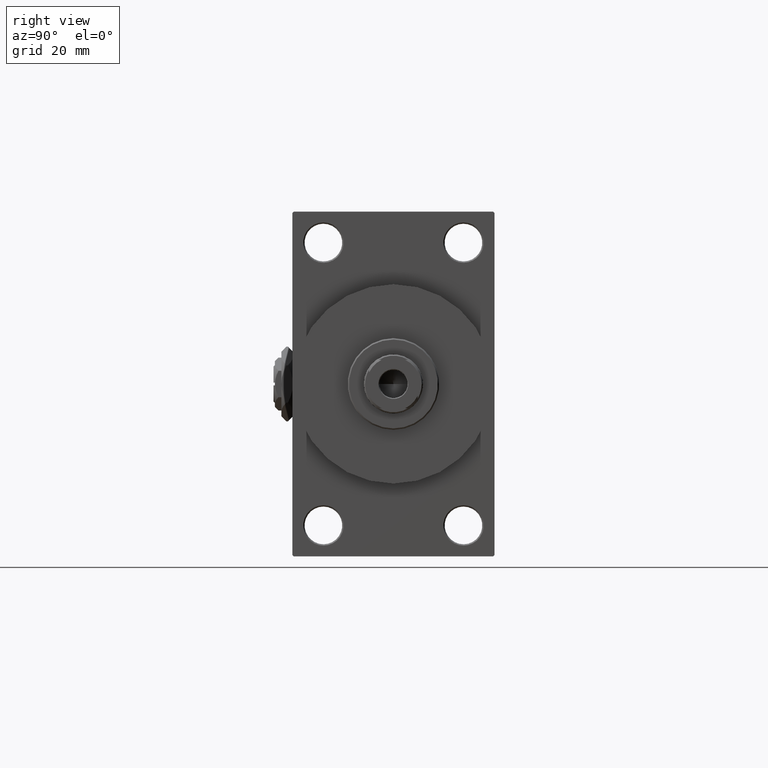
[diagram: clean part render]
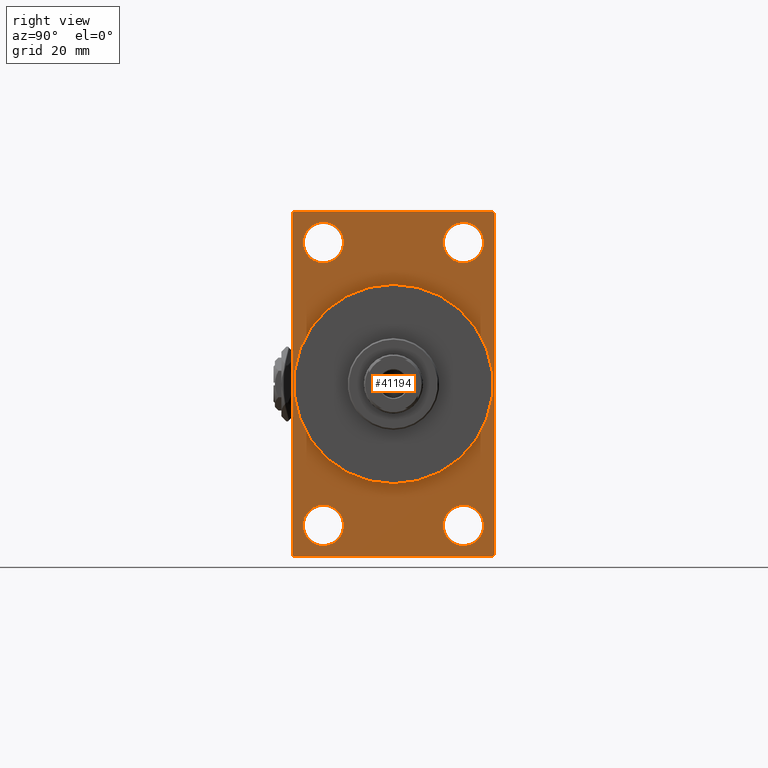
[diagram: same view with one face highlighted and labeled with its STEP entity id]
A machine part, right view. The second image highlights one B-rep face of the part: STEP entity #41194.
In plain terms, the highlighted planar face has unit normal (-1, 0, 0).
Its self-contained STEP definition (entity closure, byte-faithful):
#723 = CARTESIAN_POINT ( 'NONE',  ( 167.9999999999999716, -37.49999999999999289, 63.50000000000000000 ) ) ;
#735 = AXIS2_PLACEMENT_3D ( 'NONE', #36453, #21685, #1792 ) ;
#796 = LINE ( 'NONE', #4744, #36983 ) ;
#803 = ORIENTED_EDGE ( 'NONE', *, *, #20280, .T. ) ;
#1288 = CARTESIAN_POINT ( 'NONE',  ( 167.9999999999999716, 0.000000000000000000, 0.000000000000000000 ) ) ;
#1764 = CIRCLE ( 'NONE', #19737, 7.500000000000007105 ) ;
#1792 = DIRECTION ( 'NONE',  ( -0.000000000000000000, 0.000000000000000000, 1.000000000000000000 ) ) ;
#1833 = AXIS2_PLACEMENT_3D ( 'NONE', #36720, #18012, #25661 ) ;
#2030 = FACE_BOUND ( 'NONE', #18892, .T. ) ;
#2086 = CARTESIAN_POINT ( 'NONE',  ( 167.9999999999999716, 37.00000000000002132, -64.00000000000000000 ) ) ;
#2513 = FACE_BOUND ( 'NONE', #38167, .T. ) ;
#3249 = DIRECTION ( 'NONE',  ( 0.000000000000000000, 0.000000000000000000, 1.000000000000000000 ) ) ;
#3858 = CARTESIAN_POINT ( 'NONE',  ( 167.9999999999999716, 37.49999999999999289, -63.50000000000001421 ) ) ;
#3935 = VECTOR ( 'NONE', #40558, 1000.000000000000114 ) ;
#3964 = CARTESIAN_POINT ( 'NONE',  ( 167.9999999999999716, -25.99999999999999645, 52.50000000000000000 ) ) ;
#4117 = VECTOR ( 'NONE', #46003, 1000.000000000000000 ) ;
#4229 = EDGE_CURVE ( 'NONE', #23626, #27276, #20850, .T. ) ;
#4483 = CARTESIAN_POINT ( 'NONE',  ( 167.9999999999999716, 26.00000000000000000, -60.00000000000000000 ) ) ;
#4744 = CARTESIAN_POINT ( 'NONE',  ( 167.9999999999999716, 37.49999999999999289, -64.00000000000000000 ) ) ;
#4811 = ORIENTED_EDGE ( 'NONE', *, *, #48481, .T. ) ;
#5379 = CARTESIAN_POINT ( 'NONE',  ( 167.9999999999999716, -25.99999999999999645, -44.99999999999998579 ) ) ;
#5793 = ORIENTED_EDGE ( 'NONE', *, *, #48672, .F. ) ;
#6440 = CARTESIAN_POINT ( 'NONE',  ( 167.9999999999999716, 26.00000000000000000, 44.99999999999998579 ) ) ;
#6725 = DIRECTION ( 'NONE',  ( -1.000000000000000000, 0.000000000000000000, -0.000000000000000000 ) ) ;
#6967 = VERTEX_POINT ( 'NONE', #35062 ) ;
#7389 = CARTESIAN_POINT ( 'NONE',  ( 167.9999999999999716, 26.00000000000000000, -52.49999999999999289 ) ) ;
#7905 = DIRECTION ( 'NONE',  ( 0.000000000000000000, 0.000000000000000000, 1.000000000000000000 ) ) ;
#8544 = VERTEX_POINT ( 'NONE', #29936 ) ;
#9284 = ORIENTED_EDGE ( 'NONE', *, *, #37697, .T. ) ;
#9294 = ORIENTED_EDGE ( 'NONE', *, *, #27967, .F. ) ;
#9413 = FACE_BOUND ( 'NONE', #33104, .T. ) ;
#9537 = CARTESIAN_POINT ( 'NONE',  ( 167.9999999999999716, -25.99999999999999645, -52.49999999999999289 ) ) ;
#9764 = EDGE_CURVE ( 'NONE', #13332, #34340, #34743, .T. ) ;
#9905 = FACE_BOUND ( 'NONE', #21125, .T. ) ;
#10422 = CARTESIAN_POINT ( 'NONE',  ( 167.9999999999999716, -25.99999999999999645, 52.50000000000000000 ) ) ;
#10984 = EDGE_LOOP ( 'NONE', ( #9294, #16259 ) ) ;
#11236 = VECTOR ( 'NONE', #14685, 1000.000000000000000 ) ;
#11285 = LINE ( 'NONE', #41280, #3935 ) ;
#11630 = LINE ( 'NONE', #26636, #16898 ) ;
#11681 = CARTESIAN_POINT ( 'NONE',  ( 167.9999999999999716, 37.50000000000000000, 63.49999999999998579 ) ) ;
#11880 = DIRECTION ( 'NONE',  ( 0.000000000000000000, -1.000000000000000000, -1.850371707708594563E-16 ) ) ;
#12364 = DIRECTION ( 'NONE',  ( -1.000000000000000000, 0.000000000000000000, -0.000000000000000000 ) ) ;
#12508 = DIRECTION ( 'NONE',  ( 0.000000000000000000, -1.000000000000000000, -1.850371707708594563E-16 ) ) ;
#13039 = DIRECTION ( 'NONE',  ( 0.000000000000000000, 0.000000000000000000, -1.000000000000000000 ) ) ;
#13047 = EDGE_CURVE ( 'NONE', #20561, #8544, #24811, .T. ) ;
#13332 = VERTEX_POINT ( 'NONE', #4483 ) ;
#13497 = EDGE_CURVE ( 'NONE', #37977, #32876, #19137, .T. ) ;
#13621 = CARTESIAN_POINT ( 'NONE',  ( 167.9999999999999716, 26.00000000000000000, -44.99999999999998579 ) ) ;
#14395 = AXIS2_PLACEMENT_3D ( 'NONE', #27814, #46504, #13039 ) ;
#14417 = EDGE_CURVE ( 'NONE', #17324, #6967, #15369, .T. ) ;
#14419 = AXIS2_PLACEMENT_3D ( 'NONE', #46071, #12364, #28329 ) ;
#14598 = CARTESIAN_POINT ( 'NONE',  ( 167.9999999999999716, 37.49999999999999289, -63.50000000000001421 ) ) ;
#14685 = DIRECTION ( 'NONE',  ( 0.000000000000000000, 0.7071067811865573427, -0.7071067811865378028 ) ) ;
#14772 = CIRCLE ( 'NONE', #27374, 7.500000000000007105 ) ;
#15127 = CARTESIAN_POINT ( 'NONE',  ( 167.9999999999999716, 0.000000000000000000, 37.00000000000000000 ) ) ;
#15262 = CARTESIAN_POINT ( 'NONE',  ( 167.9999999999999716, -37.00000000000001421, 63.99999999999997158 ) ) ;
#15369 = CIRCLE ( 'NONE', #37334, 7.500000000000007105 ) ;
#15800 = DIRECTION ( 'NONE',  ( 0.000000000000000000, 0.000000000000000000, -1.000000000000000000 ) ) ;
#15948 = VERTEX_POINT ( 'NONE', #42813 ) ;
#16128 = VECTOR ( 'NONE', #12508, 1000.000000000000000 ) ;
#16259 = ORIENTED_EDGE ( 'NONE', *, *, #25181, .F. ) ;
#16835 = DIRECTION ( 'NONE',  ( 0.000000000000000000, 0.000000000000000000, 1.000000000000000000 ) ) ;
#16898 = VECTOR ( 'NONE', #15800, 1000.000000000000000 ) ;
#17025 = CARTESIAN_POINT ( 'NONE',  ( 167.9999999999999716, -25.99999999999999645, -60.00000000000000000 ) ) ;
#17051 = EDGE_CURVE ( 'NONE', #23626, #18270, #11285, .T. ) ;
#17268 = FACE_BOUND ( 'NONE', #10984, .T. ) ;
#17324 = VERTEX_POINT ( 'NONE', #6440 ) ;
#17697 = CARTESIAN_POINT ( 'NONE',  ( 167.9999999999999716, -25.99999999999999645, 44.99999999999999289 ) ) ;
#17896 = CARTESIAN_POINT ( 'NONE',  ( 167.9999999999999716, -37.49999999999999289, -63.50000000000002842 ) ) ;
#18012 = DIRECTION ( 'NONE',  ( -1.000000000000000000, 0.000000000000000000, -0.000000000000000000 ) ) ;
#18270 = VERTEX_POINT ( 'NONE', #23151 ) ;
#18598 = ORIENTED_EDGE ( 'NONE', *, *, #13497, .T. ) ;
#18892 = EDGE_LOOP ( 'NONE', ( #39331, #803 ) ) ;
#19137 = CIRCLE ( 'NONE', #14419, 7.500000000000007105 ) ;
#19223 = DIRECTION ( 'NONE',  ( -1.000000000000000000, 0.000000000000000000, -0.000000000000000000 ) ) ;
#19387 = ORIENTED_EDGE ( 'NONE', *, *, #23031, .T. ) ;
#19737 = AXIS2_PLACEMENT_3D ( 'NONE', #10422, #6725, #16835 ) ;
#19825 = ORIENTED_EDGE ( 'NONE', *, *, #17051, .T. ) ;
#20135 = CARTESIAN_POINT ( 'NONE',  ( 167.9999999999999716, 37.50000000000000000, 63.99999999999998579 ) ) ;
#20280 = EDGE_CURVE ( 'NONE', #34340, #13332, #37823, .T. ) ;
#20537 = ORIENTED_EDGE ( 'NONE', *, *, #4229, .F. ) ;
#20561 = VERTEX_POINT ( 'NONE', #17896 ) ;
#20850 = LINE ( 'NONE', #20135, #48012 ) ;
#21125 = EDGE_LOOP ( 'NONE', ( #18598, #30695 ) ) ;
#21685 = DIRECTION ( 'NONE',  ( -1.000000000000000000, 0.000000000000000000, -0.000000000000000000 ) ) ;
#22938 = DIRECTION ( 'NONE',  ( 1.000000000000000000, 0.000000000000000000, 0.000000000000000000 ) ) ;
#23031 = EDGE_CURVE ( 'NONE', #28165, #31131, #45751, .T. ) ;
#23151 = CARTESIAN_POINT ( 'NONE',  ( 167.9999999999999716, 37.00000000000000000, 63.99999999999998579 ) ) ;
#23626 = VERTEX_POINT ( 'NONE', #11681 ) ;
#24811 = LINE ( 'NONE', #26256, #11236 ) ;
#24887 = EDGE_CURVE ( 'NONE', #6967, #17324, #25428, .T. ) ;
#25181 = EDGE_CURVE ( 'NONE', #39259, #36319, #34061, .T. ) ;
#25428 = CIRCLE ( 'NONE', #1833, 7.500000000000007105 ) ;
#25606 = AXIS2_PLACEMENT_3D ( 'NONE', #3964, #19223, #7905 ) ;
#25661 = DIRECTION ( 'NONE',  ( 0.000000000000000000, 0.000000000000000000, 1.000000000000000000 ) ) ;
#25851 = ORIENTED_EDGE ( 'NONE', *, *, #13047, .T. ) ;
#26256 = CARTESIAN_POINT ( 'NONE',  ( 167.9999999999999716, -36.99999999999999289, -64.00000000000001421 ) ) ;
#26636 = CARTESIAN_POINT ( 'NONE',  ( 167.9999999999999716, -37.49999999999999289, 63.99999999999997158 ) ) ;
#27276 = VERTEX_POINT ( 'NONE', #3858 ) ;
#27374 = AXIS2_PLACEMENT_3D ( 'NONE', #9537, #32639, #36565 ) ;
#27451 = ORIENTED_EDGE ( 'NONE', *, *, #24887, .T. ) ;
#27814 = CARTESIAN_POINT ( 'NONE',  ( 167.9999999999999716, 0.000000000000000000, 0.000000000000000000 ) ) ;
#27967 = EDGE_CURVE ( 'NONE', #36319, #39259, #29470, .T. ) ;
#28001 = EDGE_CURVE ( 'NONE', #31131, #20561, #11630, .T. ) ;
#28165 = VERTEX_POINT ( 'NONE', #15262 ) ;
#28329 = DIRECTION ( 'NONE',  ( 0.000000000000000000, 0.000000000000000000, 1.000000000000000000 ) ) ;
#28997 = ORIENTED_EDGE ( 'NONE', *, *, #28001, .T. ) ;
#29175 = EDGE_CURVE ( 'NONE', #18270, #28165, #31197, .T. ) ;
#29470 = CIRCLE ( 'NONE', #38888, 37.00000000000000000 ) ;
#29936 = CARTESIAN_POINT ( 'NONE',  ( 167.9999999999999716, -36.99999999999999289, -64.00000000000001421 ) ) ;
#30695 = ORIENTED_EDGE ( 'NONE', *, *, #39658, .T. ) ;
#31131 = VERTEX_POINT ( 'NONE', #46956 ) ;
#31197 = LINE ( 'NONE', #46212, #16128 ) ;
#32014 = VECTOR ( 'NONE', #45575, 1000.000000000000114 ) ;
#32330 = AXIS2_PLACEMENT_3D ( 'NONE', #7389, #36897, #40605 ) ;
#32639 = DIRECTION ( 'NONE',  ( -1.000000000000000000, 0.000000000000000000, -0.000000000000000000 ) ) ;
#32876 = VERTEX_POINT ( 'NONE', #5379 ) ;
#33009 = CARTESIAN_POINT ( 'NONE',  ( 167.9999999999999716, 26.00000000000000000, -52.49999999999999289 ) ) ;
#33104 = EDGE_LOOP ( 'NONE', ( #48370, #4811 ) ) ;
#34061 = CIRCLE ( 'NONE', #14395, 37.00000000000000000 ) ;
#34264 = LINE ( 'NONE', #14598, #32014 ) ;
#34340 = VERTEX_POINT ( 'NONE', #13621 ) ;
#34690 = EDGE_CURVE ( 'NONE', #39184, #15948, #35046, .T. ) ;
#34743 = CIRCLE ( 'NONE', #44121, 7.500000000000007105 ) ;
#35046 = CIRCLE ( 'NONE', #25606, 7.500000000000007105 ) ;
#35062 = CARTESIAN_POINT ( 'NONE',  ( 167.9999999999999716, 26.00000000000000000, 60.00000000000000000 ) ) ;
#36149 = CARTESIAN_POINT ( 'NONE',  ( 167.9999999999999716, 4.531193156845206793E-15, -37.00000000000000000 ) ) ;
#36319 = VERTEX_POINT ( 'NONE', #15127 ) ;
#36453 = CARTESIAN_POINT ( 'NONE',  ( 167.9999999999999716, 0.000000000000000000, 0.000000000000000000 ) ) ;
#36565 = DIRECTION ( 'NONE',  ( 0.000000000000000000, 0.000000000000000000, 1.000000000000000000 ) ) ;
#36720 = CARTESIAN_POINT ( 'NONE',  ( 167.9999999999999716, 26.00000000000000000, 52.49999999999999289 ) ) ;
#36897 = DIRECTION ( 'NONE',  ( -1.000000000000000000, 0.000000000000000000, -0.000000000000000000 ) ) ;
#36948 = DIRECTION ( 'NONE',  ( -1.000000000000000000, 0.000000000000000000, -0.000000000000000000 ) ) ;
#36983 = VECTOR ( 'NONE', #11880, 1000.000000000000000 ) ;
#37261 = CARTESIAN_POINT ( 'NONE',  ( 167.9999999999999716, 26.00000000000000000, 52.49999999999999289 ) ) ;
#37334 = AXIS2_PLACEMENT_3D ( 'NONE', #37261, #44881, #45379 ) ;
#37528 = ORIENTED_EDGE ( 'NONE', *, *, #29175, .T. ) ;
#37697 = EDGE_CURVE ( 'NONE', #39912, #27276, #34264, .T. ) ;
#37823 = CIRCLE ( 'NONE', #32330, 7.500000000000007105 ) ;
#37948 = DIRECTION ( 'NONE',  ( 0.000000000000000000, 0.000000000000000000, -1.000000000000000000 ) ) ;
#37977 = VERTEX_POINT ( 'NONE', #17025 ) ;
#38167 = EDGE_LOOP ( 'NONE', ( #38264, #27451 ) ) ;
#38264 = ORIENTED_EDGE ( 'NONE', *, *, #14417, .T. ) ;
#38888 = AXIS2_PLACEMENT_3D ( 'NONE', #1288, #22938, #37948 ) ;
#39184 = VERTEX_POINT ( 'NONE', #17697 ) ;
#39259 = VERTEX_POINT ( 'NONE', #36149 ) ;
#39331 = ORIENTED_EDGE ( 'NONE', *, *, #9764, .T. ) ;
#39429 = FACE_OUTER_BOUND ( 'NONE', #44004, .T. ) ;
#39658 = EDGE_CURVE ( 'NONE', #32876, #37977, #14772, .T. ) ;
#39912 = VERTEX_POINT ( 'NONE', #2086 ) ;
#40558 = DIRECTION ( 'NONE',  ( 0.000000000000000000, -0.7071067811865474617, 0.7071067811865474617 ) ) ;
#40605 = DIRECTION ( 'NONE',  ( 0.000000000000000000, 0.000000000000000000, 1.000000000000000000 ) ) ;
#41194 = ADVANCED_FACE ( 'NONE', ( #9413, #9905, #2030, #2513, #17268, #39429 ), #43355, .F. ) ;
#41280 = CARTESIAN_POINT ( 'NONE',  ( 167.9999999999999716, 37.00000000000000000, 63.99999999999998579 ) ) ;
#42813 = CARTESIAN_POINT ( 'NONE',  ( 167.9999999999999716, -25.99999999999999645, 60.00000000000000711 ) ) ;
#43002 = DIRECTION ( 'NONE',  ( 0.000000000000000000, -5.421010862427522170E-17, -1.000000000000000000 ) ) ;
#43355 = PLANE ( 'NONE',  #735 ) ;
#44004 = EDGE_LOOP ( 'NONE', ( #28997, #25851, #5793, #9284, #20537, #19825, #37528, #19387 ) ) ;
#44121 = AXIS2_PLACEMENT_3D ( 'NONE', #33009, #36948, #3249 ) ;
#44881 = DIRECTION ( 'NONE',  ( -1.000000000000000000, 0.000000000000000000, -0.000000000000000000 ) ) ;
#45379 = DIRECTION ( 'NONE',  ( 0.000000000000000000, 0.000000000000000000, 1.000000000000000000 ) ) ;
#45575 = DIRECTION ( 'NONE',  ( -0.000000000000000000, 0.7071067811865376918, 0.7071067811865573427 ) ) ;
#45751 = LINE ( 'NONE', #723, #4117 ) ;
#46003 = DIRECTION ( 'NONE',  ( -0.000000000000000000, -0.7071067811865524577, -0.7071067811865426878 ) ) ;
#46071 = CARTESIAN_POINT ( 'NONE',  ( 167.9999999999999716, -25.99999999999999645, -52.49999999999999289 ) ) ;
#46212 = CARTESIAN_POINT ( 'NONE',  ( 167.9999999999999716, 37.50000000000000000, 63.99999999999998579 ) ) ;
#46504 = DIRECTION ( 'NONE',  ( 1.000000000000000000, 0.000000000000000000, 0.000000000000000000 ) ) ;
#46956 = CARTESIAN_POINT ( 'NONE',  ( 167.9999999999999716, -37.49999999999999289, 63.50000000000000000 ) ) ;
#48012 = VECTOR ( 'NONE', #43002, 1000.000000000000000 ) ;
#48370 = ORIENTED_EDGE ( 'NONE', *, *, #34690, .T. ) ;
#48481 = EDGE_CURVE ( 'NONE', #15948, #39184, #1764, .T. ) ;
#48672 = EDGE_CURVE ( 'NONE', #39912, #8544, #796, .T. ) ;